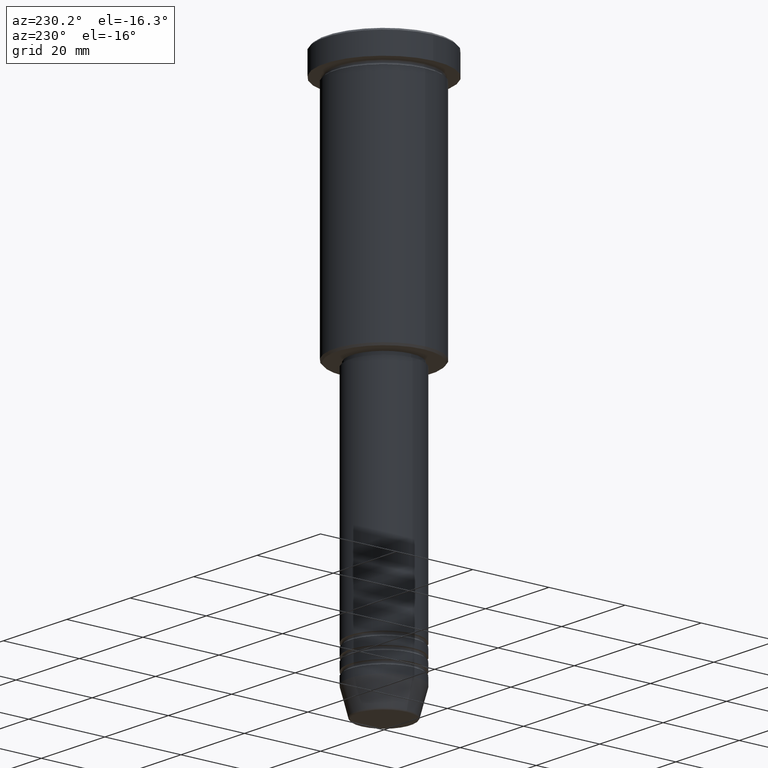
[diagram: clean part render]
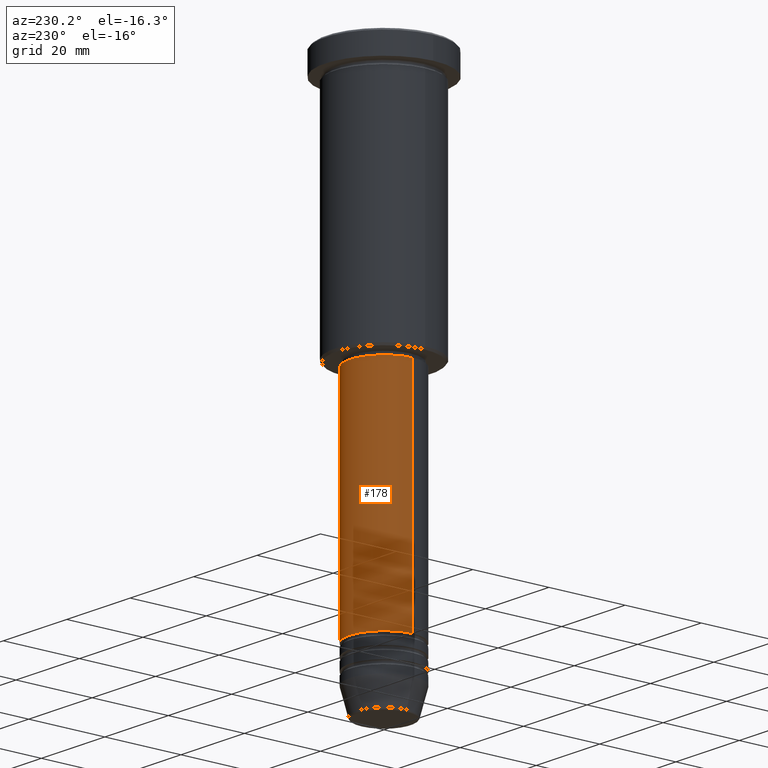
[diagram: same view with one face highlighted and labeled with its STEP entity id]
A machine part, auxiliary view. The second image highlights one B-rep face of the part: STEP entity #178.
In plain terms, the highlighted cylindrical surface (partial cylindrical patch) has radius 9 mm, axis along (-0, -0, 1).
Its self-contained STEP definition (entity closure, byte-faithful):
#5 = EDGE_CURVE ( 'NONE', #862, #579, #905, .T. ) ;
#26 = CARTESIAN_POINT ( 'NONE',  ( 9.000000000000000000, 0.000000000000000000, -67.00000000000000000 ) ) ;
#51 = ORIENTED_EDGE ( 'NONE', *, *, #5, .F. ) ;
#80 = CARTESIAN_POINT ( 'NONE',  ( 9.000000000000000000, 0.000000000000000000, 0.000000000000000000 ) ) ;
#89 = DIRECTION ( 'NONE',  ( -0.000000000000000000, -0.000000000000000000, 1.000000000000000000 ) ) ;
#134 = CIRCLE ( 'NONE', #713, 9.000000000000000000 ) ;
#178 = ADVANCED_FACE ( 'NONE', ( #589 ), #507, .T. ) ;
#191 = VECTOR ( 'NONE', #623, 1000.000000000000000 ) ;
#226 = EDGE_CURVE ( 'NONE', #862, #573, #134, .T. ) ;
#233 = CARTESIAN_POINT ( 'NONE',  ( -9.000000000000000000, 1.102182119232617714E-15, -124.9999999999999716 ) ) ;
#281 = EDGE_LOOP ( 'NONE', ( #472, #864, #1088, #51 ) ) ;
#341 = DIRECTION ( 'NONE',  ( -0.000000000000000000, -0.000000000000000000, 1.000000000000000000 ) ) ;
#472 = ORIENTED_EDGE ( 'NONE', *, *, #226, .T. ) ;
#507 = CYLINDRICAL_SURFACE ( 'NONE', #1006, 9.000000000000000000 ) ;
#528 = DIRECTION ( 'NONE',  ( 1.000000000000000000, 0.000000000000000000, 0.000000000000000000 ) ) ;
#540 = CARTESIAN_POINT ( 'NONE',  ( -9.000000000000000000, 1.102182119232617714E-15, 0.000000000000000000 ) ) ;
#551 = LINE ( 'NONE', #540, #980 ) ;
#573 = VERTEX_POINT ( 'NONE', #233 ) ;
#579 = VERTEX_POINT ( 'NONE', #26 ) ;
#589 = FACE_OUTER_BOUND ( 'NONE', #281, .T. ) ;
#597 = CARTESIAN_POINT ( 'NONE',  ( 9.000000000000000000, 0.000000000000000000, -124.9999999999999716 ) ) ;
#623 = DIRECTION ( 'NONE',  ( -0.000000000000000000, -0.000000000000000000, 1.000000000000000000 ) ) ;
#642 = EDGE_CURVE ( 'NONE', #579, #1062, #861, .T. ) ;
#713 = AXIS2_PLACEMENT_3D ( 'NONE', #1009, #89, #926 ) ;
#746 = AXIS2_PLACEMENT_3D ( 'NONE', #897, #341, #1159 ) ;
#861 = CIRCLE ( 'NONE', #746, 9.000000000000000000 ) ;
#862 = VERTEX_POINT ( 'NONE', #597 ) ;
#864 = ORIENTED_EDGE ( 'NONE', *, *, #1030, .T. ) ;
#878 = DIRECTION ( 'NONE',  ( -0.000000000000000000, -0.000000000000000000, 1.000000000000000000 ) ) ;
#879 = CARTESIAN_POINT ( 'NONE',  ( 0.000000000000000000, 0.000000000000000000, 0.000000000000000000 ) ) ;
#897 = CARTESIAN_POINT ( 'NONE',  ( 0.000000000000000000, 0.000000000000000000, -67.00000000000000000 ) ) ;
#905 = LINE ( 'NONE', #80, #191 ) ;
#926 = DIRECTION ( 'NONE',  ( 1.000000000000000000, 0.000000000000000000, 0.000000000000000000 ) ) ;
#980 = VECTOR ( 'NONE', #878, 1000.000000000000000 ) ;
#1006 = AXIS2_PLACEMENT_3D ( 'NONE', #879, #1069, #528 ) ;
#1009 = CARTESIAN_POINT ( 'NONE',  ( 0.000000000000000000, 0.000000000000000000, -124.9999999999999716 ) ) ;
#1030 = EDGE_CURVE ( 'NONE', #573, #1062, #551, .T. ) ;
#1062 = VERTEX_POINT ( 'NONE', #1176 ) ;
#1069 = DIRECTION ( 'NONE',  ( -0.000000000000000000, -0.000000000000000000, 1.000000000000000000 ) ) ;
#1088 = ORIENTED_EDGE ( 'NONE', *, *, #642, .F. ) ;
#1159 = DIRECTION ( 'NONE',  ( 1.000000000000000000, 0.000000000000000000, 0.000000000000000000 ) ) ;
#1176 = CARTESIAN_POINT ( 'NONE',  ( -9.000000000000000000, 1.102182119232617714E-15, -67.00000000000000000 ) ) ;